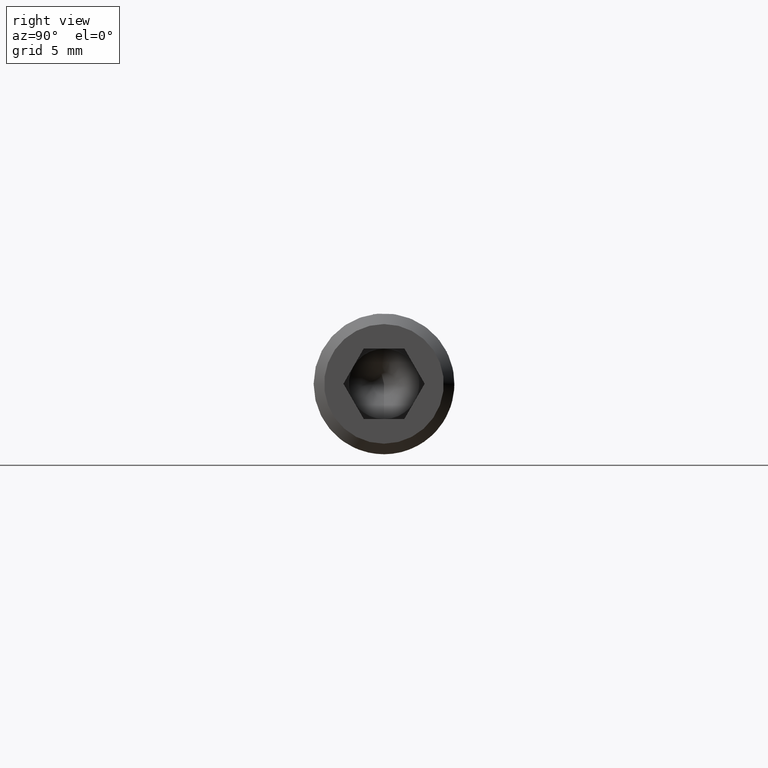
[diagram: clean part render]
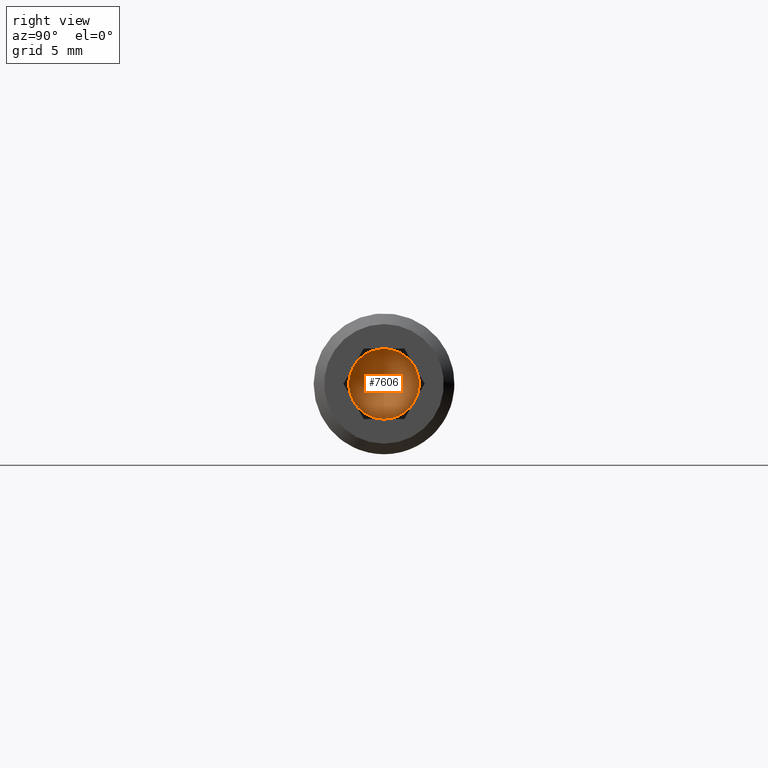
[diagram: same view with one face highlighted and labeled with its STEP entity id]
A machine part, right view. The second image highlights one B-rep face of the part: STEP entity #7606.
In plain terms, the highlighted conical surface has half-angle 59 deg.
Its self-contained STEP definition (entity closure, byte-faithful):
#107 = DIRECTION ( 'NONE',  ( 0.0000000000000000000, 0.0000000000000000000, 1.000000000000000000 ) ) ;
#596 = CIRCLE ( 'NONE', #16922, 2.000000000000000900 ) ;
#805 = CARTESIAN_POINT ( 'NONE',  ( 35.00000000000000000, -1.732050807568878500, -0.9999999999999986700 ) ) ;
#1048 = VERTEX_POINT ( 'NONE', #1445 ) ;
#1142 = AXIS2_PLACEMENT_3D ( 'NONE', #11681, #8886, #2049 ) ;
#1199 = CIRCLE ( 'NONE', #7629, 2.000000000000000900 ) ;
#1445 = CARTESIAN_POINT ( 'NONE',  ( 35.00000000000000000, 3.755786496842897600E-016, -2.000000000000000000 ) ) ;
#1565 = CARTESIAN_POINT ( 'NONE',  ( 35.00000000000000000, 1.732050807568877900, 1.000000000000001600 ) ) ;
#1636 = CARTESIAN_POINT ( 'NONE',  ( 35.00000000000000000, 0.0000000000000000000, 1.450750479977372800E-015 ) ) ;
#1716 = EDGE_CURVE ( 'NONE', #12324, #1968, #596, .T. ) ;
#1968 = VERTEX_POINT ( 'NONE', #4460 ) ;
#2049 = DIRECTION ( 'NONE',  ( 0.0000000000000000000, 0.0000000000000000000, -1.000000000000000000 ) ) ;
#2188 = FACE_OUTER_BOUND ( 'NONE', #12084, .T. ) ;
#2666 = EDGE_CURVE ( 'NONE', #4314, #12324, #9081, .T. ) ;
#2888 = DIRECTION ( 'NONE',  ( 0.0000000000000000000, 0.0000000000000000000, 1.000000000000000000 ) ) ;
#2989 = ORIENTED_EDGE ( 'NONE', *, *, #4355, .T. ) ;
#3272 = ORIENTED_EDGE ( 'NONE', *, *, #2666, .F. ) ;
#3474 = ORIENTED_EDGE ( 'NONE', *, *, #4395, .F. ) ;
#3825 = EDGE_CURVE ( 'NONE', #1048, #4314, #13337, .T. ) ;
#4314 = VERTEX_POINT ( 'NONE', #805 ) ;
#4355 = EDGE_CURVE ( 'NONE', #1048, #10592, #1199, .T. ) ;
#4395 = EDGE_CURVE ( 'NONE', #10117, #10592, #14607, .T. ) ;
#4460 = CARTESIAN_POINT ( 'NONE',  ( 35.00000000000000000, 0.0000000000000000000, 1.999999999999999600 ) ) ;
#4989 = DIRECTION ( 'NONE',  ( 0.0000000000000000000, 0.0000000000000000000, 1.000000000000000000 ) ) ;
#5010 = AXIS2_PLACEMENT_3D ( 'NONE', #15902, #7664, #9091 ) ;
#5096 = DIRECTION ( 'NONE',  ( -1.000000000000000000, -0.0000000000000000000, 0.0000000000000000000 ) ) ;
#5730 = EDGE_CURVE ( 'NONE', #1968, #10117, #11828, .T. ) ;
#6459 = CARTESIAN_POINT ( 'NONE',  ( 35.00000000000000000, 0.0000000000000000000, 1.450750479977372800E-015 ) ) ;
#6487 = AXIS2_PLACEMENT_3D ( 'NONE', #9673, #11037, #2888 ) ;
#6663 = CARTESIAN_POINT ( 'NONE',  ( 35.00000000000000000, 1.732050807568878500, -0.9999999999999988900 ) ) ;
#6962 = AXIS2_PLACEMENT_3D ( 'NONE', #6459, #5096, #15884 ) ;
#7606 = ADVANCED_FACE ( 'NONE', ( #2188 ), #9841, .F. ) ;
#7629 = AXIS2_PLACEMENT_3D ( 'NONE', #11921, #12043, #13391 ) ;
#7664 = DIRECTION ( 'NONE',  ( -1.000000000000000000, -0.0000000000000000000, 0.0000000000000000000 ) ) ;
#7874 = ORIENTED_EDGE ( 'NONE', *, *, #5730, .F. ) ;
#8886 = DIRECTION ( 'NONE',  ( 1.000000000000000000, -0.0000000000000000000, -1.783047038878395400E-016 ) ) ;
#9081 = CIRCLE ( 'NONE', #6487, 2.000000000000000900 ) ;
#9091 = DIRECTION ( 'NONE',  ( 0.0000000000000000000, 0.0000000000000000000, 1.000000000000000000 ) ) ;
#9673 = CARTESIAN_POINT ( 'NONE',  ( 35.00000000000000000, 0.0000000000000000000, 1.450750479977372800E-015 ) ) ;
#9841 = CONICAL_SURFACE ( 'NONE', #1142, 2.000000000000000900, 1.029744258676649900 ) ;
#10117 = VERTEX_POINT ( 'NONE', #1565 ) ;
#10592 = VERTEX_POINT ( 'NONE', #6663 ) ;
#11037 = DIRECTION ( 'NONE',  ( -1.000000000000000000, -0.0000000000000000000, 0.0000000000000000000 ) ) ;
#11341 = ORIENTED_EDGE ( 'NONE', *, *, #1716, .F. ) ;
#11681 = CARTESIAN_POINT ( 'NONE',  ( 35.00000000000000000, 0.0000000000000000000, 8.572527594031468300E-016 ) ) ;
#11828 = CIRCLE ( 'NONE', #15488, 2.000000000000000900 ) ;
#11921 = CARTESIAN_POINT ( 'NONE',  ( 35.00000000000000000, 0.0000000000000000000, 8.572527594031468300E-016 ) ) ;
#11985 = ORIENTED_EDGE ( 'NONE', *, *, #3825, .F. ) ;
#12043 = DIRECTION ( 'NONE',  ( 1.000000000000000000, -0.0000000000000000000, -1.783047038878395400E-016 ) ) ;
#12084 = EDGE_LOOP ( 'NONE', ( #2989, #3474, #7874, #11341, #3272, #11985 ) ) ;
#12324 = VERTEX_POINT ( 'NONE', #14813 ) ;
#12458 = DIRECTION ( 'NONE',  ( -1.000000000000000000, -0.0000000000000000000, 0.0000000000000000000 ) ) ;
#13337 = CIRCLE ( 'NONE', #5010, 2.000000000000000900 ) ;
#13391 = DIRECTION ( 'NONE',  ( 0.0000000000000000000, 0.0000000000000000000, -1.000000000000000000 ) ) ;
#14539 = DIRECTION ( 'NONE',  ( -1.000000000000000000, -0.0000000000000000000, 0.0000000000000000000 ) ) ;
#14607 = CIRCLE ( 'NONE', #6962, 2.000000000000000900 ) ;
#14813 = CARTESIAN_POINT ( 'NONE',  ( 35.00000000000000000, -1.732050807568877600, 1.000000000000002400 ) ) ;
#15488 = AXIS2_PLACEMENT_3D ( 'NONE', #15946, #14539, #4989 ) ;
#15884 = DIRECTION ( 'NONE',  ( 0.0000000000000000000, 0.0000000000000000000, 1.000000000000000000 ) ) ;
#15902 = CARTESIAN_POINT ( 'NONE',  ( 35.00000000000000000, 0.0000000000000000000, 1.450750479977372800E-015 ) ) ;
#15946 = CARTESIAN_POINT ( 'NONE',  ( 35.00000000000000000, 0.0000000000000000000, 1.450750479977372800E-015 ) ) ;
#16922 = AXIS2_PLACEMENT_3D ( 'NONE', #1636, #12458, #107 ) ;